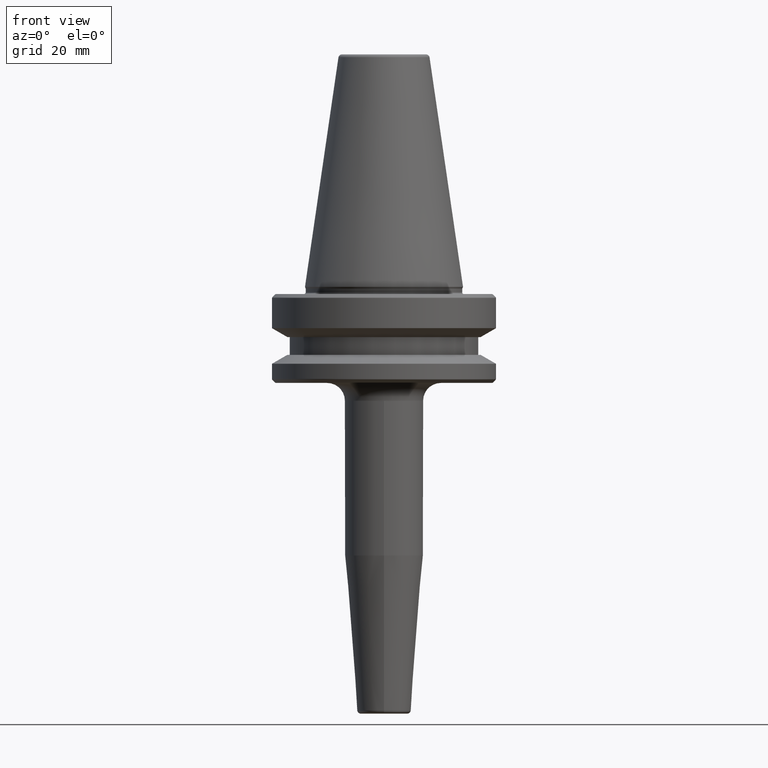
[diagram: clean part render]
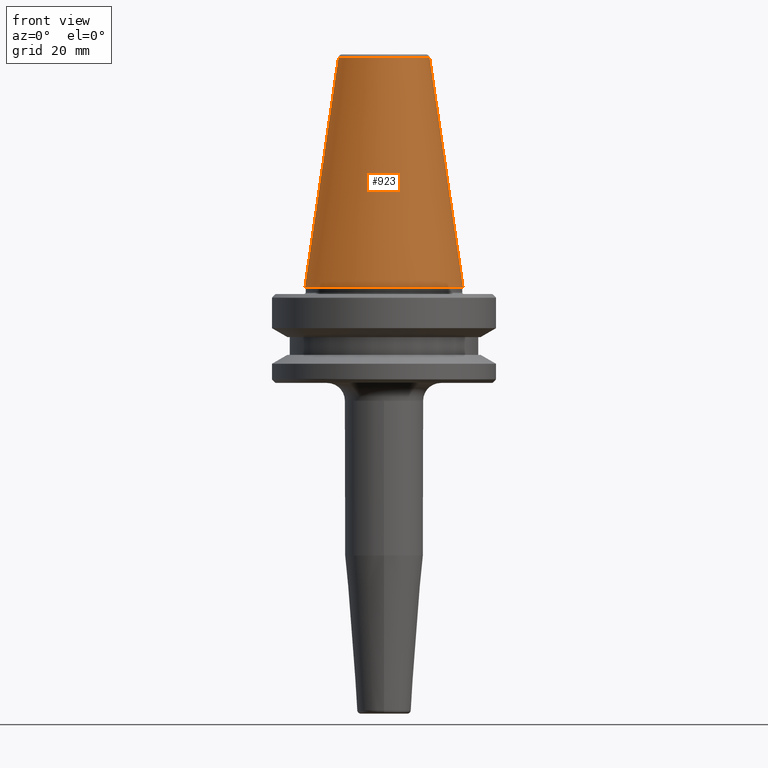
[diagram: same view with one face highlighted and labeled with its STEP entity id]
A machine part, front view. The second image highlights one B-rep face of the part: STEP entity #923.
In plain terms, the highlighted conical surface has half-angle 8.297 deg.
Its self-contained STEP definition (entity closure, byte-faithful):
#17 = ORIENTED_EDGE ( 'NONE', *, *, #1125, .F. ) ;
#34 = LINE ( 'NONE', #374, #580 ) ;
#128 = CONICAL_SURFACE ( 'NONE', #1134, 12.81219950706224800, 0.1448138465474191100 ) ;
#158 = EDGE_CURVE ( 'NONE', #421, #723, #1018, .T. ) ;
#217 = DIRECTION ( 'NONE',  ( -0.0000000000000000000, -0.0000000000000000000, 1.000000000000000000 ) ) ;
#252 = EDGE_CURVE ( 'NONE', #269, #1021, #631, .T. ) ;
#269 = VERTEX_POINT ( 'NONE', #868 ) ;
#271 = ORIENTED_EDGE ( 'NONE', *, *, #280, .T. ) ;
#280 = EDGE_CURVE ( 'NONE', #269, #421, #569, .T. ) ;
#319 = VECTOR ( 'NONE', #783, 1000.000000000000000 ) ;
#374 = CARTESIAN_POINT ( 'NONE',  ( 12.81219950706224800, 1.569041911636107800E-015, 64.54430822726730800 ) ) ;
#421 = VERTEX_POINT ( 'NONE', #774 ) ;
#427 = DIRECTION ( 'NONE',  ( -0.0000000000000000000, -0.0000000000000000000, 1.000000000000000000 ) ) ;
#447 = DIRECTION ( 'NONE',  ( 1.000000000000000000, 0.0000000000000000000, 0.0000000000000000000 ) ) ;
#496 = CARTESIAN_POINT ( 'NONE',  ( 0.0000000000000000000, 0.0000000000000000000, 64.54430822726730800 ) ) ;
#569 = LINE ( 'NONE', #1245, #319 ) ;
#580 = VECTOR ( 'NONE', #663, 1000.000000000000000 ) ;
#631 = CIRCLE ( 'NONE', #852, 12.81219950706224800 ) ;
#663 = DIRECTION ( 'NONE',  ( 0.1443082272673071000, 1.767266086135364600E-017, -0.9895327864921743500 ) ) ;
#699 = AXIS2_PLACEMENT_3D ( 'NONE', #897, #427, #993 ) ;
#723 = VERTEX_POINT ( 'NONE', #880 ) ;
#774 = CARTESIAN_POINT ( 'NONE',  ( -22.22500000000000500, 2.721777511104993200E-015, 0.0000000000000000000 ) ) ;
#783 = DIRECTION ( 'NONE',  ( -0.1443082272673071000, 0.0000000000000000000, -0.9895327864921743500 ) ) ;
#852 = AXIS2_PLACEMENT_3D ( 'NONE', #1069, #217, #447 ) ;
#868 = CARTESIAN_POINT ( 'NONE',  ( -12.81219950706224800, 0.0000000000000000000, 64.54430822726730800 ) ) ;
#880 = CARTESIAN_POINT ( 'NONE',  ( 22.22500000000000500, 0.0000000000000000000, 0.0000000000000000000 ) ) ;
#897 = CARTESIAN_POINT ( 'NONE',  ( 0.0000000000000000000, 0.0000000000000000000, 0.0000000000000000000 ) ) ;
#923 = ADVANCED_FACE ( 'NONE', ( #967 ), #128, .T. ) ;
#933 = ORIENTED_EDGE ( 'NONE', *, *, #158, .T. ) ;
#948 = EDGE_LOOP ( 'NONE', ( #17, #1259, #271, #933 ) ) ;
#967 = FACE_OUTER_BOUND ( 'NONE', #948, .T. ) ;
#984 = DIRECTION ( 'NONE',  ( -1.000000000000000000, 0.0000000000000000000, 0.0000000000000000000 ) ) ;
#993 = DIRECTION ( 'NONE',  ( 1.000000000000000000, 0.0000000000000000000, 0.0000000000000000000 ) ) ;
#1018 = CIRCLE ( 'NONE', #699, 22.22500000000000500 ) ;
#1021 = VERTEX_POINT ( 'NONE', #1132 ) ;
#1069 = CARTESIAN_POINT ( 'NONE',  ( 0.0000000000000000000, 0.0000000000000000000, 64.54430822726730800 ) ) ;
#1081 = DIRECTION ( 'NONE',  ( 0.0000000000000000000, 0.0000000000000000000, -1.000000000000000000 ) ) ;
#1125 = EDGE_CURVE ( 'NONE', #1021, #723, #34, .T. ) ;
#1132 = CARTESIAN_POINT ( 'NONE',  ( 12.81219950706224800, 2.145409711370550300E-015, 64.54430822726730800 ) ) ;
#1134 = AXIS2_PLACEMENT_3D ( 'NONE', #496, #1081, #984 ) ;
#1245 = CARTESIAN_POINT ( 'NONE',  ( -12.81219950706224800, 0.0000000000000000000, 64.54430822726730800 ) ) ;
#1259 = ORIENTED_EDGE ( 'NONE', *, *, #252, .F. ) ;